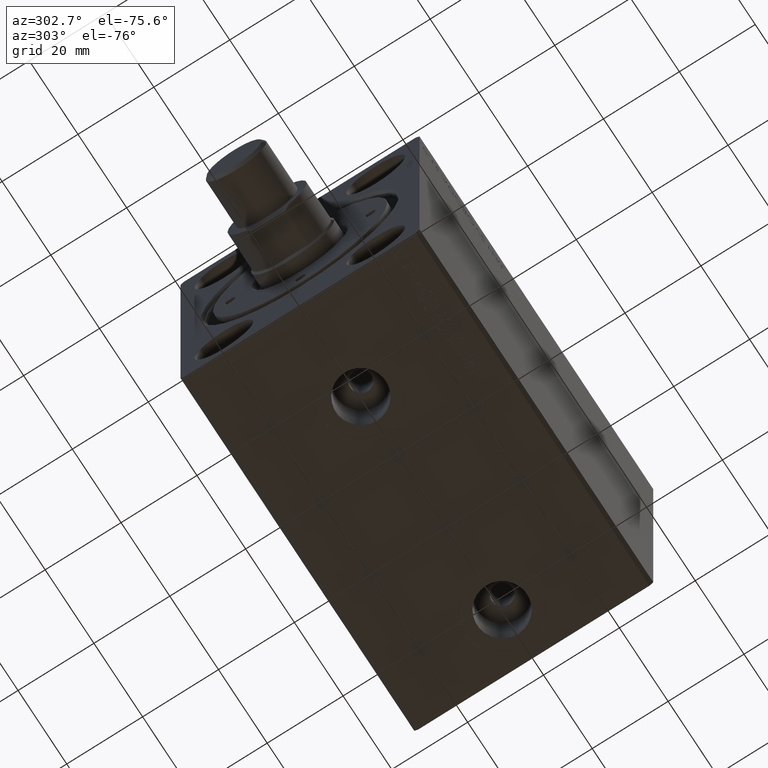
[diagram: clean part render]
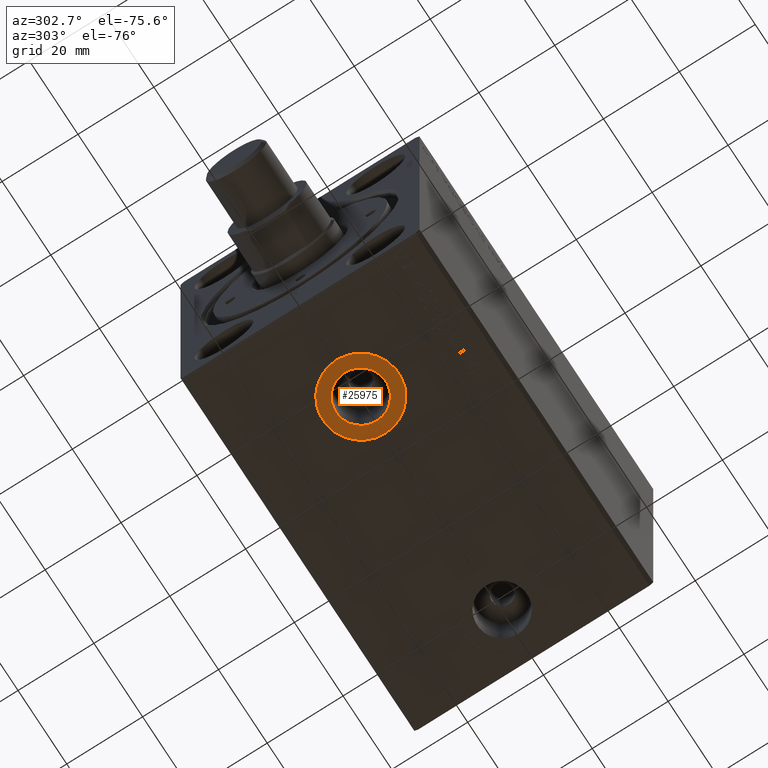
[diagram: same view with one face highlighted and labeled with its STEP entity id]
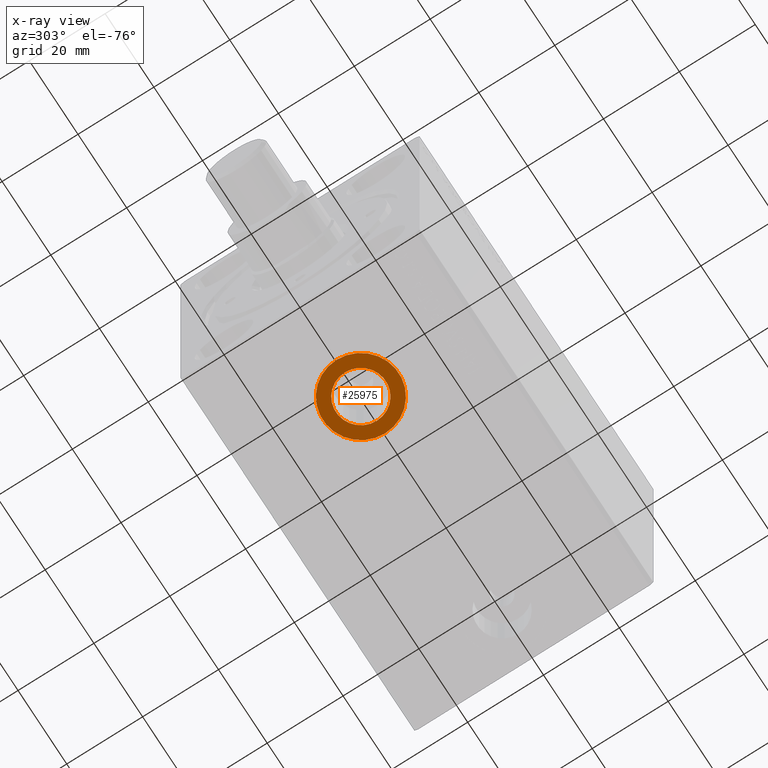
[diagram: x-ray of the same camera — body ghosted, the highlighted face saturated]
A machine part, auxiliary view. The second image highlights one B-rep face of the part: STEP entity #25975.
The next image is the same camera in x-ray: the body ghosted, the highlighted face saturated — about 0% of this face is hidden behind the body in this view.
In plain terms, the highlighted planar face has unit normal (0, 0, -1).
Its self-contained STEP definition (entity closure, byte-faithful):
#2496 = ORIENTED_EDGE ( 'NONE', *, *, #7276, .F. ) ;
#4290 = CARTESIAN_POINT ( 'NONE',  ( 25.00000000000000000, -2.665753871451547918E-15, -42.40000000000000568 ) ) ;
#4582 = DIRECTION ( 'NONE',  ( -1.000000000000000000, 0.000000000000000000, 0.000000000000000000 ) ) ;
#7276 = EDGE_CURVE ( 'NONE', #30454, #14651, #9281, .T. ) ;
#8162 = DIRECTION ( 'NONE',  ( 0.000000000000000000, 0.000000000000000000, -1.000000000000000000 ) ) ;
#8229 = AXIS2_PLACEMENT_3D ( 'NONE', #26031, #44033, #12758 ) ;
#9281 = CIRCLE ( 'NONE', #22902, 6.580000000000002736 ) ;
#11075 = AXIS2_PLACEMENT_3D ( 'NONE', #41930, #8162, #4582 ) ;
#12758 = DIRECTION ( 'NONE',  ( -1.000000000000000000, 0.000000000000000000, 0.000000000000000000 ) ) ;
#14651 = VERTEX_POINT ( 'NONE', #41548 ) ;
#16020 = VERTEX_POINT ( 'NONE', #18550 ) ;
#17149 = DIRECTION ( 'NONE',  ( 0.000000000000000000, 0.000000000000000000, -1.000000000000000000 ) ) ;
#17278 = PLANE ( 'NONE',  #23971 ) ;
#18550 = CARTESIAN_POINT ( 'NONE',  ( 35.00000000000000000, -1.441107072304194662E-15, -42.40000000000000568 ) ) ;
#20707 = DIRECTION ( 'NONE',  ( 0.000000000000000000, 0.000000000000000000, -1.000000000000000000 ) ) ;
#21328 = FACE_BOUND ( 'NONE', #38530, .T. ) ;
#21464 = EDGE_CURVE ( 'NONE', #16020, #27263, #43983, .T. ) ;
#22902 = AXIS2_PLACEMENT_3D ( 'NONE', #23685, #17149, #27499 ) ;
#23318 = CARTESIAN_POINT ( 'NONE',  ( 15.00000000000000178, -2.665753871451547918E-15, -42.40000000000000568 ) ) ;
#23685 = CARTESIAN_POINT ( 'NONE',  ( 25.00000000000000000, -2.665753871451547918E-15, -42.40000000000000568 ) ) ;
#23819 = DIRECTION ( 'NONE',  ( 0.000000000000000000, 0.000000000000000000, -1.000000000000000000 ) ) ;
#23971 = AXIS2_PLACEMENT_3D ( 'NONE', #31027, #23819, #31468 ) ;
#24022 = CIRCLE ( 'NONE', #11075, 6.580000000000002736 ) ;
#24525 = DIRECTION ( 'NONE',  ( -1.000000000000000000, 0.000000000000000000, 0.000000000000000000 ) ) ;
#24594 = CARTESIAN_POINT ( 'NONE',  ( 18.41999999999999815, -2.665753871451547918E-15, -42.40000000000000568 ) ) ;
#25975 = ADVANCED_FACE ( 'NONE', ( #21328, #44517 ), #17278, .T. ) ;
#26031 = CARTESIAN_POINT ( 'NONE',  ( 25.00000000000000000, -2.665753871451547918E-15, -42.40000000000000568 ) ) ;
#27263 = VERTEX_POINT ( 'NONE', #23318 ) ;
#27499 = DIRECTION ( 'NONE',  ( -1.000000000000000000, 0.000000000000000000, 0.000000000000000000 ) ) ;
#27625 = CIRCLE ( 'NONE', #8229, 10.00000000000000000 ) ;
#28228 = EDGE_CURVE ( 'NONE', #27263, #16020, #27625, .T. ) ;
#29400 = ORIENTED_EDGE ( 'NONE', *, *, #28228, .T. ) ;
#30454 = VERTEX_POINT ( 'NONE', #24594 ) ;
#31027 = CARTESIAN_POINT ( 'NONE',  ( 0.000000000000000000, 0.000000000000000000, -42.40000000000000568 ) ) ;
#31231 = EDGE_CURVE ( 'NONE', #14651, #30454, #24022, .T. ) ;
#31468 = DIRECTION ( 'NONE',  ( -1.000000000000000000, 0.000000000000000000, -0.000000000000000000 ) ) ;
#34821 = ORIENTED_EDGE ( 'NONE', *, *, #31231, .F. ) ;
#35605 = EDGE_LOOP ( 'NONE', ( #29400, #37094 ) ) ;
#36823 = AXIS2_PLACEMENT_3D ( 'NONE', #4290, #20707, #24525 ) ;
#37094 = ORIENTED_EDGE ( 'NONE', *, *, #21464, .T. ) ;
#38530 = EDGE_LOOP ( 'NONE', ( #2496, #34821 ) ) ;
#41548 = CARTESIAN_POINT ( 'NONE',  ( 31.58000000000000540, -1.859936277612589271E-15, -42.40000000000000568 ) ) ;
#41930 = CARTESIAN_POINT ( 'NONE',  ( 25.00000000000000000, -2.665753871451547918E-15, -42.40000000000000568 ) ) ;
#43983 = CIRCLE ( 'NONE', #36823, 10.00000000000000000 ) ;
#44033 = DIRECTION ( 'NONE',  ( 0.000000000000000000, 0.000000000000000000, -1.000000000000000000 ) ) ;
#44517 = FACE_OUTER_BOUND ( 'NONE', #35605, .T. ) ;